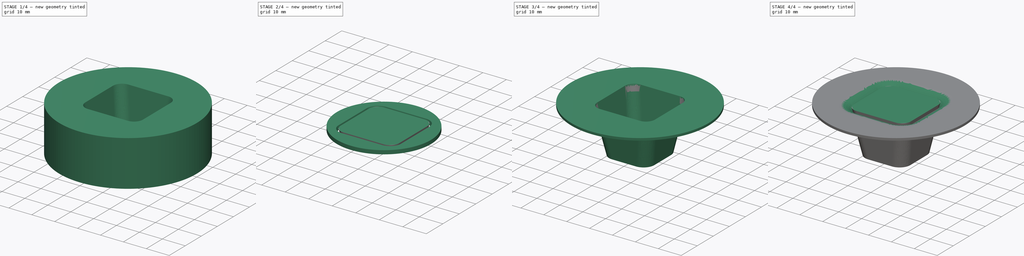
[diagram: build sequence overview — one tinted view per stage of 4, left to right]
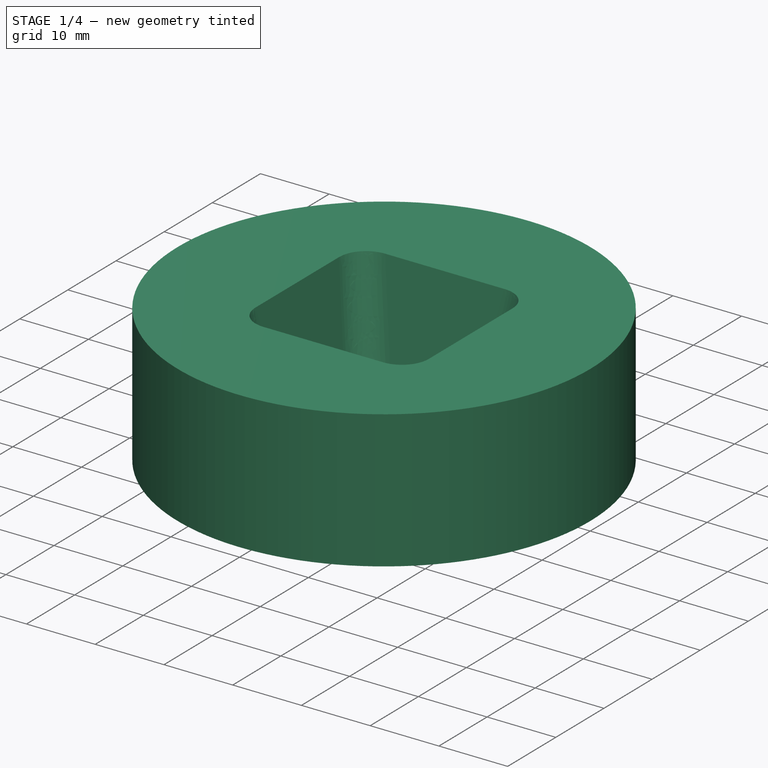
[diagram: stage 1 of 4 — iso view after this stage's code; geometry added in this stage tinted green]
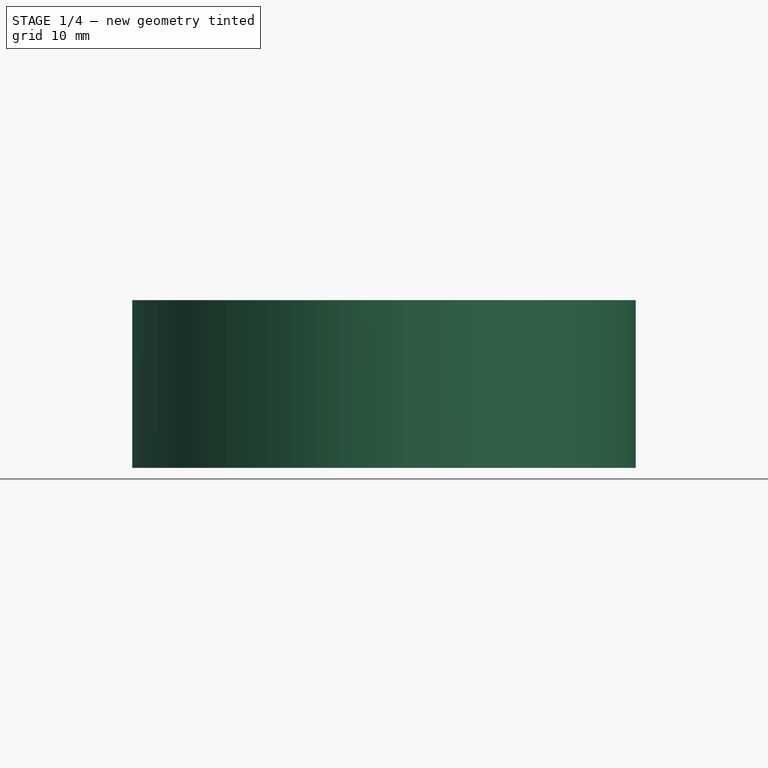
[diagram: stage 1 of 4 — front view after this stage's code; geometry added in this stage tinted green]
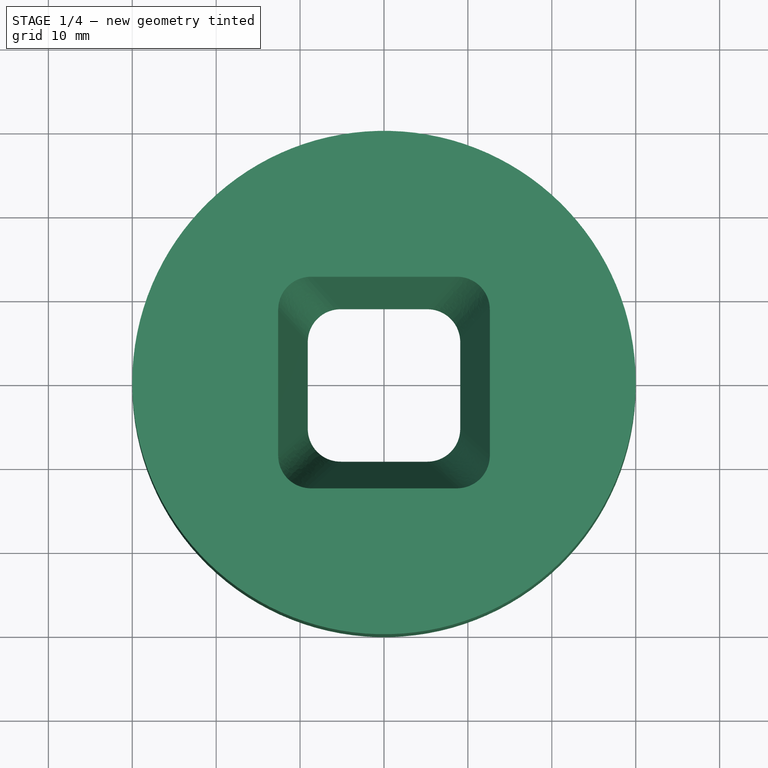
[diagram: stage 1 of 4 — top view after this stage's code; geometry added in this stage tinted green]
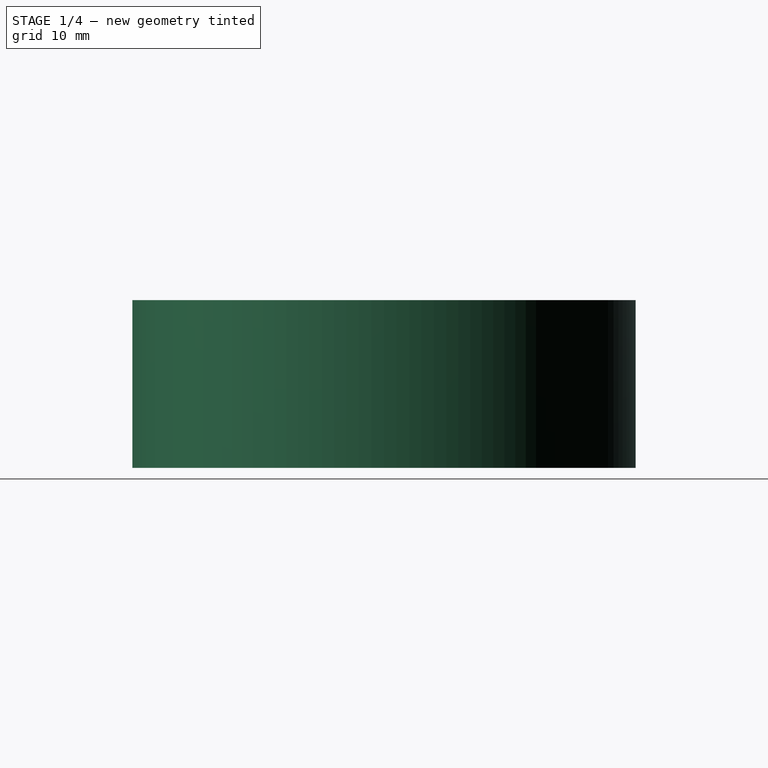
[diagram: stage 1 of 4 — right view after this stage's code; geometry added in this stage tinted green]
FCSTD DOCUMENT  (FreeCAD 0.20R29177 (Git))
Label: rockwool-holder
License: Creative Commons Attribution-ShareAlike
LicenseURL: http://creativecommons.org/licenses/by-sa/4.0/
objects: Sketcher::SketchObject×3, PartDesign::Fillet×3, PartDesign::Pad×2, PartDesign::Body×2, Part::FeaturePython×2, PartDesign::Pocket×1, PartDesign::Thickness×1, Part::Cylinder×1, Part::Cut×1, Part::MultiFuse×1, App::DocumentObjectGroup×1, PartDesign::FeatureBase×1
note: 25 computed .brp shape members not serialized (recipe doc carries the construction recipe); baked Part::Feature solids carry a one-line shape summary decoded from their .brp

FEATURE [Sketcher::SketchObject] Sketch
  FullyConstrained = true
  MapMode = 5
  Support = -> [XY_Plane]
  sketch-geometry (1):
    g0: Circle CenterX=0 CenterY=0 CenterZ=0 NormalX=0 NormalY=0 NormalZ=1 AngleXU=0 Radius=30
  constraints (2):
    c: Coincident(g0,g-1)
    c: Diameter(g0) = 60
FEATURE [PartDesign::Pad] Pad
  Direction = (0,0,1)
  Length = 20
  Length2 = 10
  Profile = -> Sketch
  ReferenceAxis = -> Sketch [N_Axis]
  Reversed = true
  Type = 0
FEATURE [Sketcher::SketchObject] Sketch001
  FullyConstrained = false
  MapMode = 5
  Support = -> [Pad]
  sketch-geometry (5):
    g0: LineSegment StartX=-12.6117 StartY=12.6117 StartZ=0 EndX=-12.6117 EndY=-12.6117 EndZ=0
    g1: LineSegment StartX=-12.6117 StartY=-12.6117 StartZ=0 EndX=12.6117 EndY=-12.6117 EndZ=0
    g2: LineSegment StartX=12.6117 StartY=-12.6117 StartZ=0 EndX=12.6117 EndY=12.6117 EndZ=0
    g3: LineSegment StartX=12.6117 StartY=12.6117 StartZ=0 EndX=-12.6117 EndY=12.6117 EndZ=0
    g4: Circle CenterX=0 CenterY=0 CenterZ=0 NormalX=0 NormalY=0 NormalZ=1 AngleXU=0 Radius=17.8356
  constraints (13):
    c: Coincident(g0,g1)
    c: Coincident(g1,g2)
    c: Coincident(g2,g3)
    c: Coincident(g3,g0)
    c: Equal(g0,g1)
    c: Equal(g0,g2)
    c: Equal(g0,g3)
    c: PointOnObject(g0,g4)
    c: PointOnObject(g1,g4)
    c: PointOnObject(g2,g4)
    c: PointOnObject(g3,g4)
    c: Coincident(g4,g-1)
    c: Horizontal(g3)
FEATURE [PartDesign::Pocket] Pocket
  BaseFeature = -> Pad
  Direction = (0,0,-1)
  Length = 20
  Length2 = 5
  Profile = -> Sketch001
  ReferenceAxis = -> Sketch001 [N_Axis]
  TaperAngle = -10
  Type = 0
FEATURE [PartDesign::Fillet] Fillet
  Base = -> Pocket [Edge13,Edge14,Edge15,Edge12]
  BaseFeature = -> Pocket
  Radius = 4
  SupportTransform = false
  UseAllEdges = false
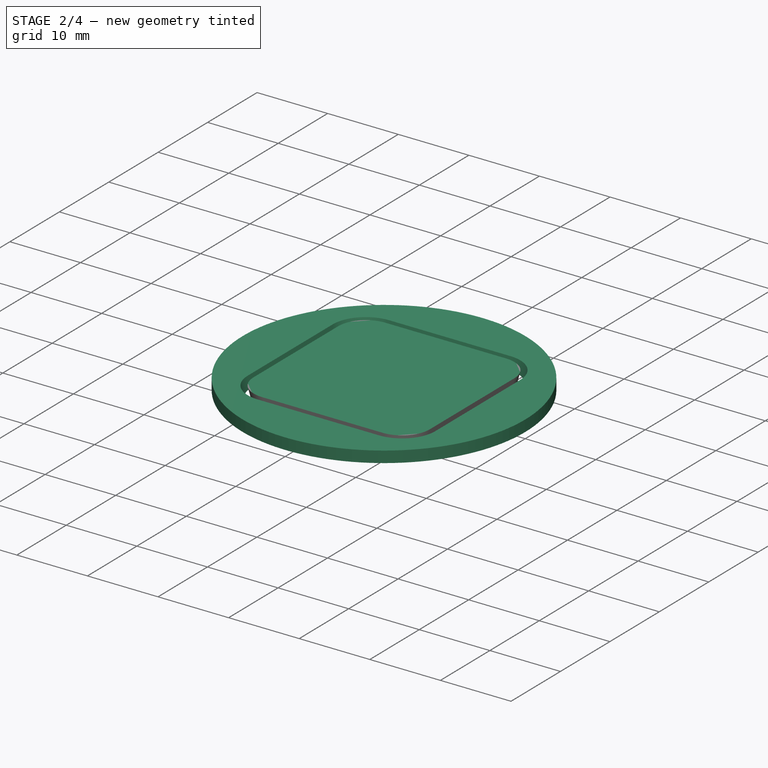
[diagram: stage 2 of 4 — iso view after this stage's code; geometry added in this stage tinted green]
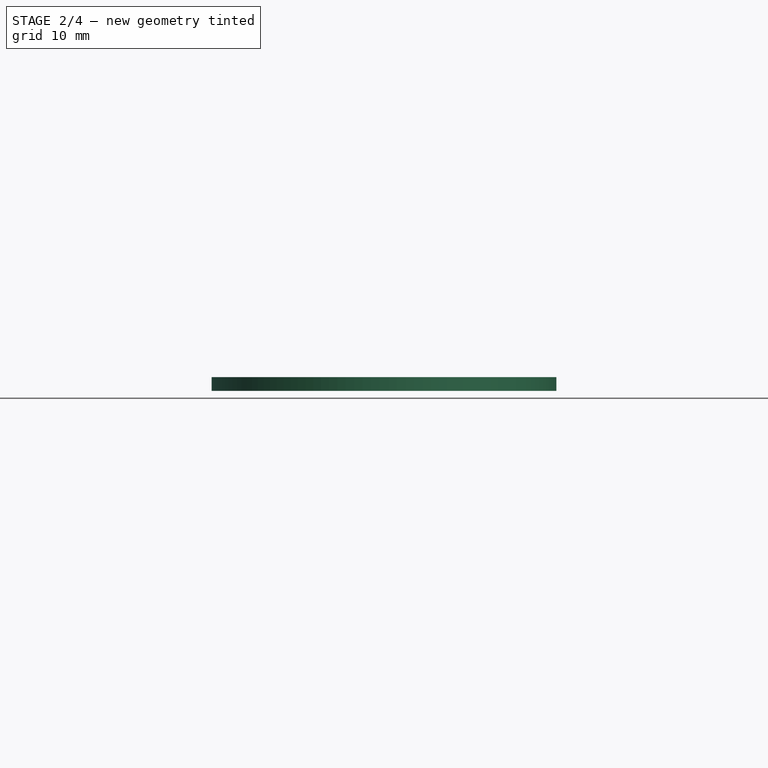
[diagram: stage 2 of 4 — front view after this stage's code; geometry added in this stage tinted green]
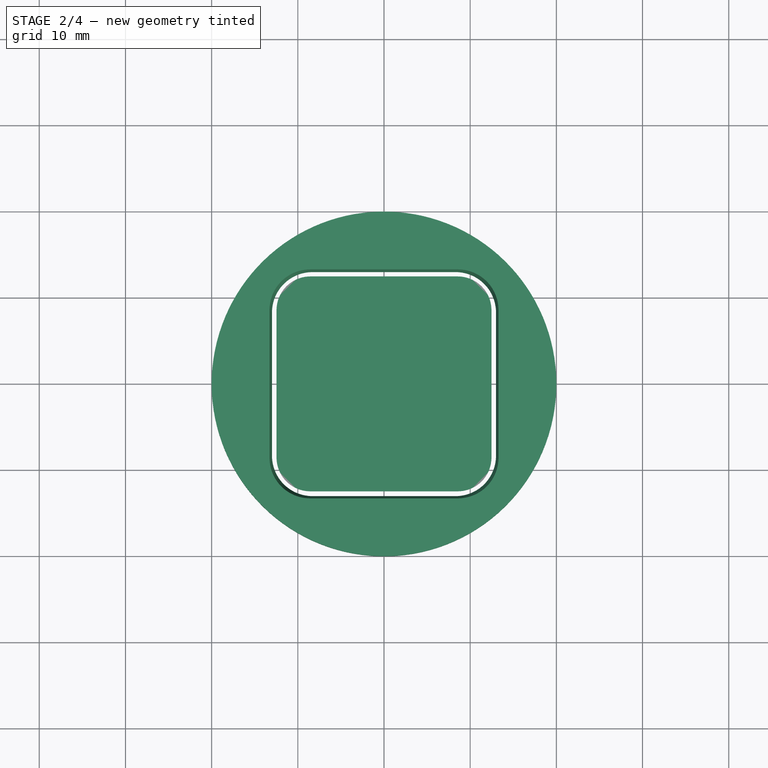
[diagram: stage 2 of 4 — top view after this stage's code; geometry added in this stage tinted green]
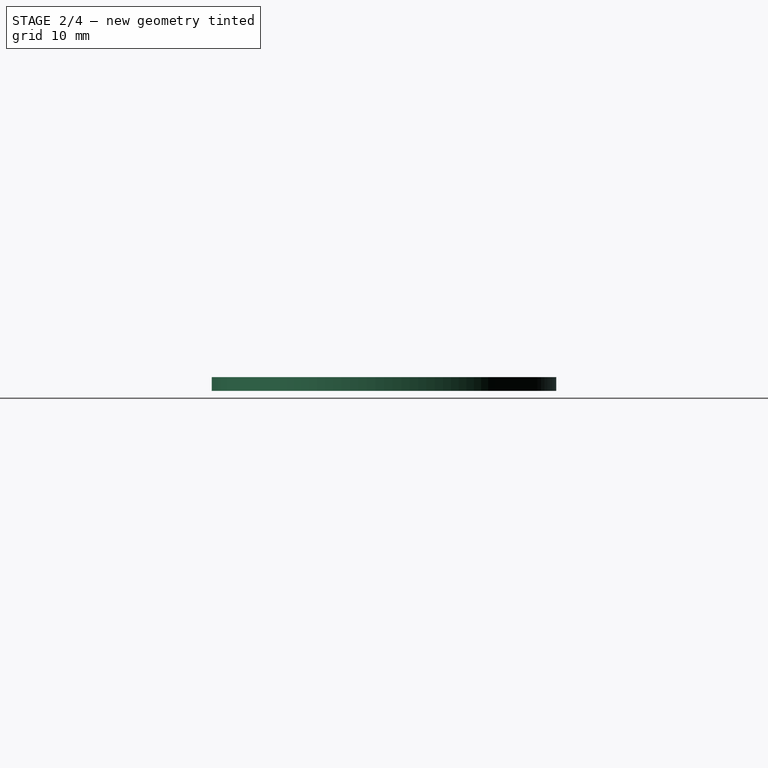
[diagram: stage 2 of 4 — right view after this stage's code; geometry added in this stage tinted green]
FEATURE [PartDesign::Thickness] Thickness
  Base = -> Fillet [Face10,Face11]
  BaseFeature = -> Fillet
  Intersection = false
  Join = 0
  Mode = 0
  Reversed = true
  SupportTransform = false
  Value = 0.8
FEATURE [PartDesign::Body] Body
  Group = -> [Sketch,Pad,Sketch001,Pocket,Fillet,Thickness]
  Origin = -> Origin
  Tip = -> Thickness
FEATURE [Part::Cylinder] Cylinder
  Angle = 360
  AttacherType = Attacher::AttachEngine3D
  FirstAngle = 0
  Height = 1.6
  Placement = pos=(0,0,-2.4) rot=(0,0,1;0rad)
  Radius = 20
  SecondAngle = 0
  expr: .Placement.Base.z = -Height - Thickness.Value
  expr: Radius = 40 / 2
FEATURE [Part::Cut] Cut
  Base = -> Cylinder
  Tool = -> Body
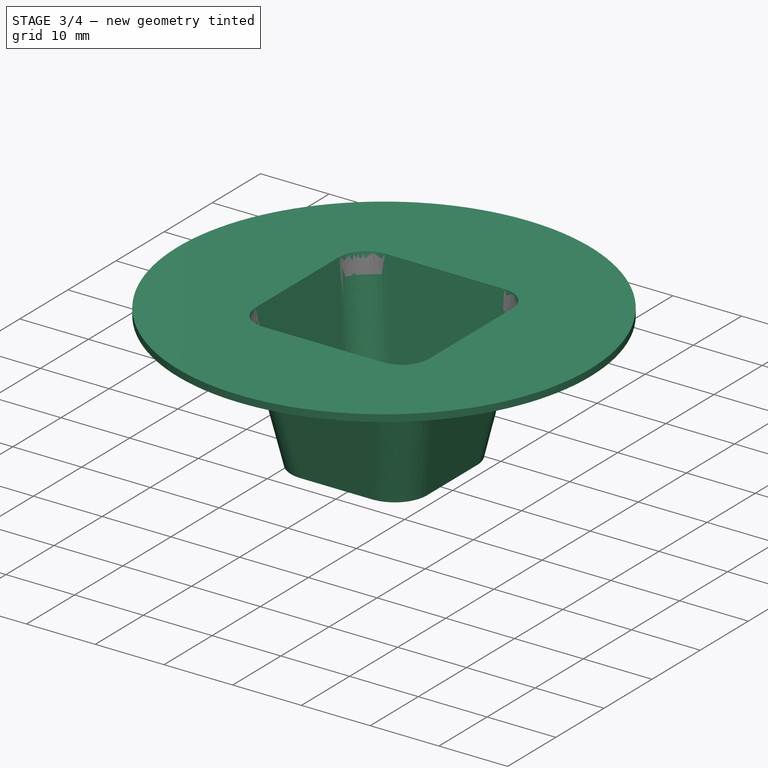
[diagram: stage 3 of 4 — iso view after this stage's code; geometry added in this stage tinted green]
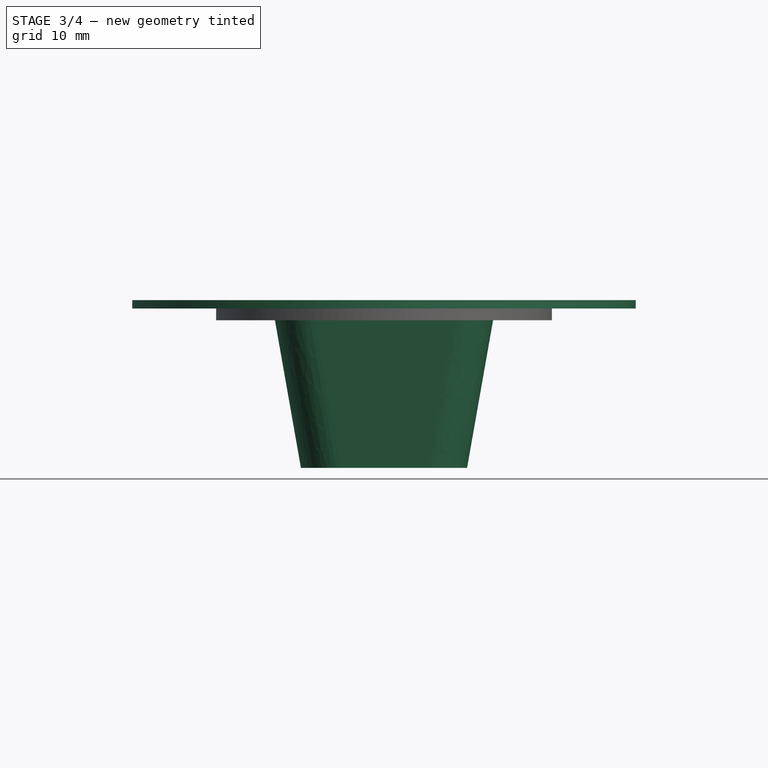
[diagram: stage 3 of 4 — front view after this stage's code; geometry added in this stage tinted green]
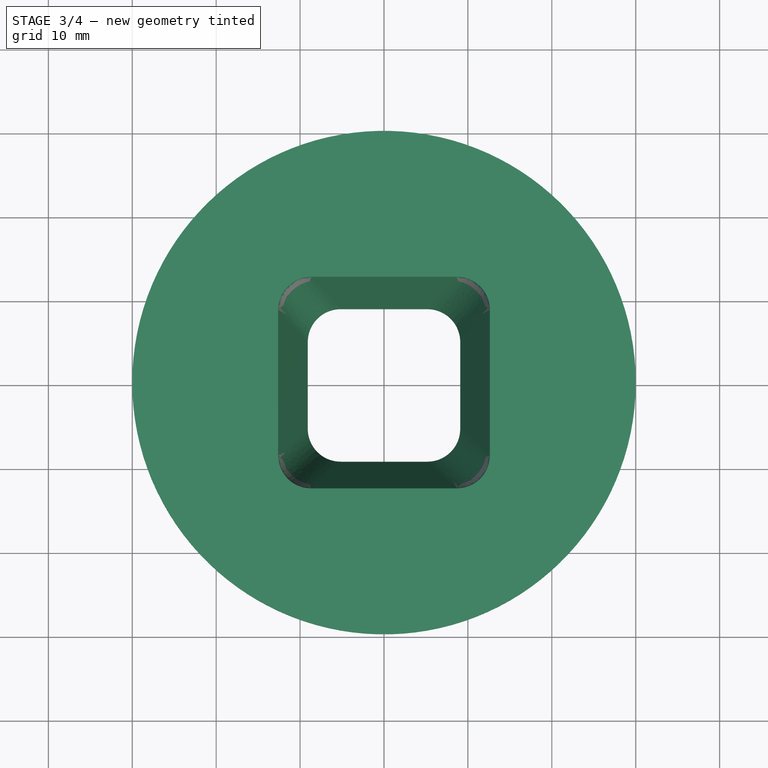
[diagram: stage 3 of 4 — top view after this stage's code; geometry added in this stage tinted green]
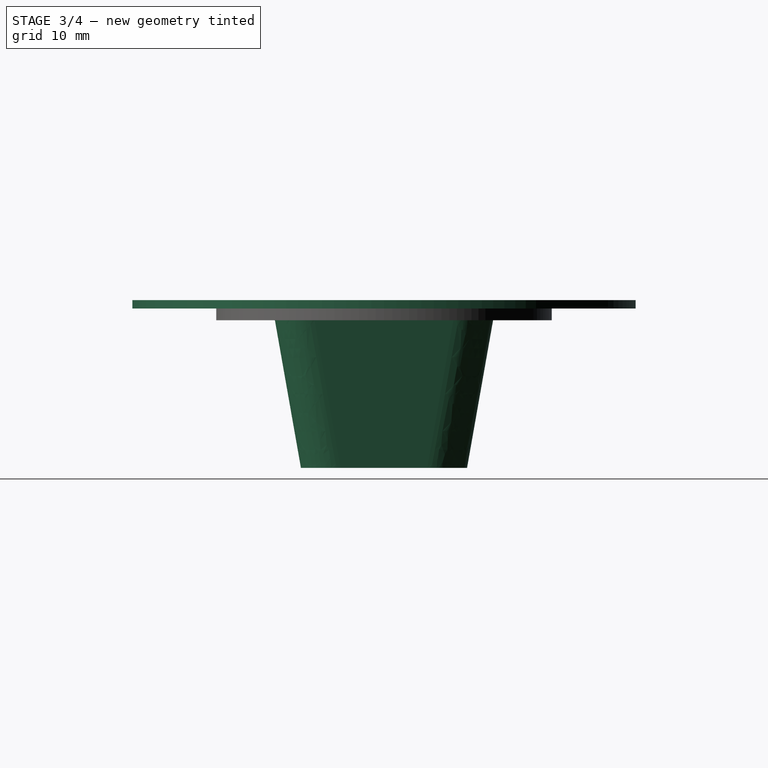
[diagram: stage 3 of 4 — right view after this stage's code; geometry added in this stage tinted green]
FEATURE [Part::FeaturePython] Cut_child0  label="Cut.0"  # WARN: FeaturePython — macro-defined, semantics opaque (R4)
  Base = -> Cut
  FilterType = 1
  Invert = false
  OverrideMaxVal = 0
  WindowFrom = 80
  WindowTo = 100
  items = 0
FEATURE [Part::MultiFuse] Fusion
  Shapes = -> [Body,Cut_child0]
FEATURE [App::DocumentObjectGroup] GrExplode_Cut  label="Exploded Cut"
  Group = -> [Cut_child1,Fusion]
FEATURE [PartDesign::FeatureBase] BaseFeature
  BaseFeature = -> Fusion
FEATURE [PartDesign::Pad] Pad001
  BaseFeature = -> BaseFeature
  Direction = (0,0,-1)
  Length = 0.2
  Length2 = 10
  Profile = -> BaseFeature [Face12]
  Refine = true
  Type = 0
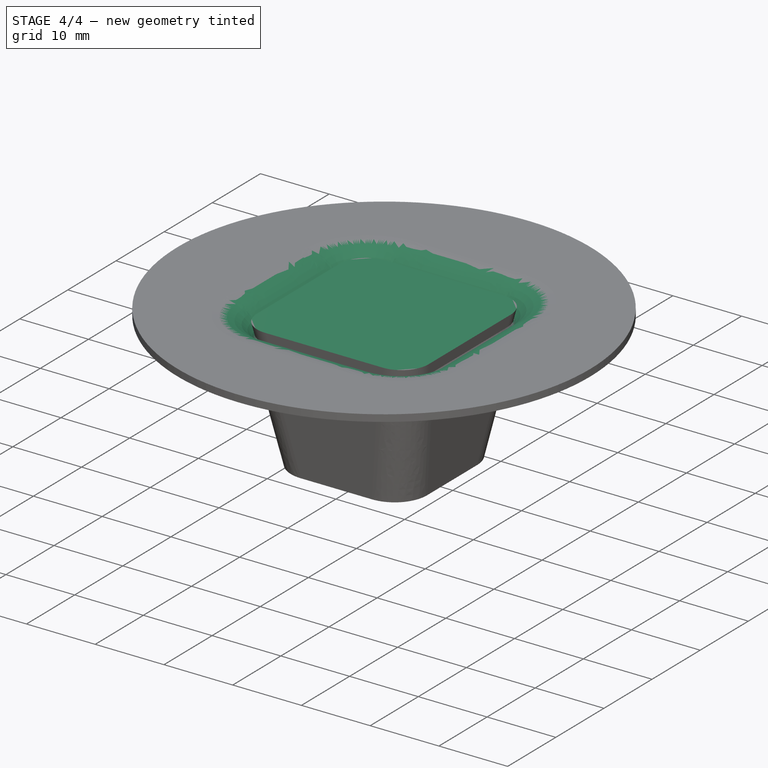
[diagram: stage 4 of 4 — iso view after this stage's code; geometry added in this stage tinted green]
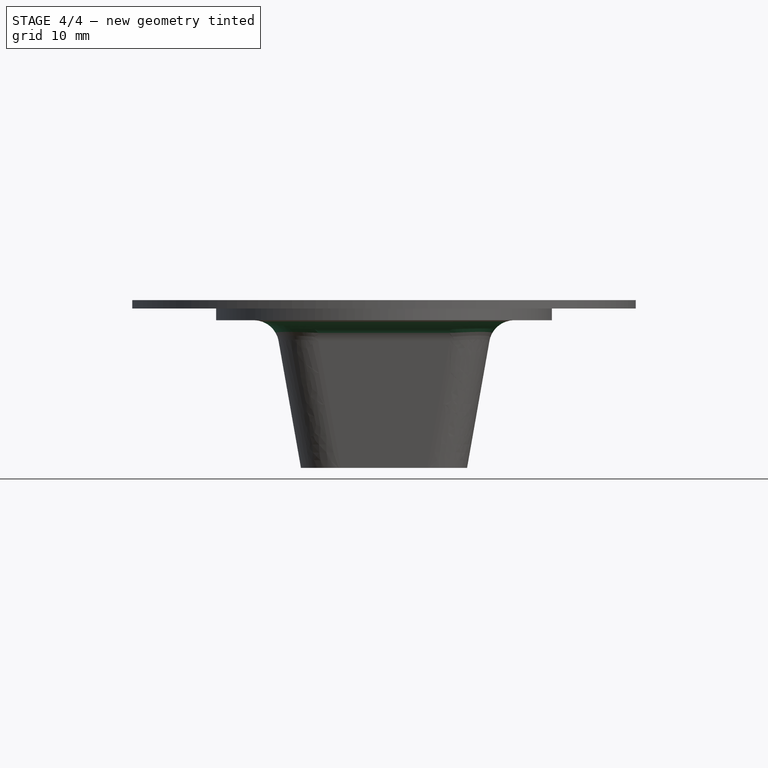
[diagram: stage 4 of 4 — front view after this stage's code; geometry added in this stage tinted green]
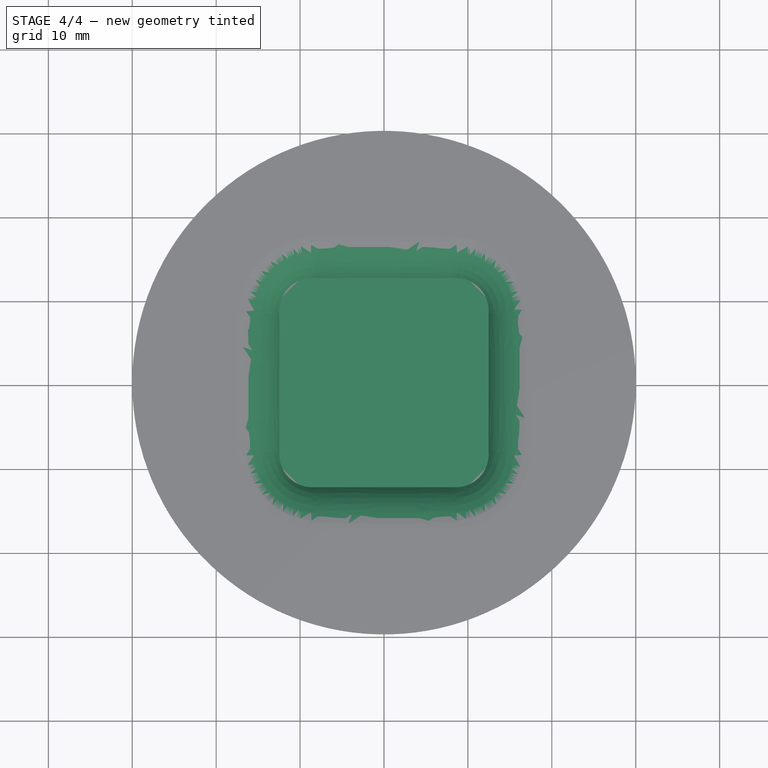
[diagram: stage 4 of 4 — top view after this stage's code; geometry added in this stage tinted green]
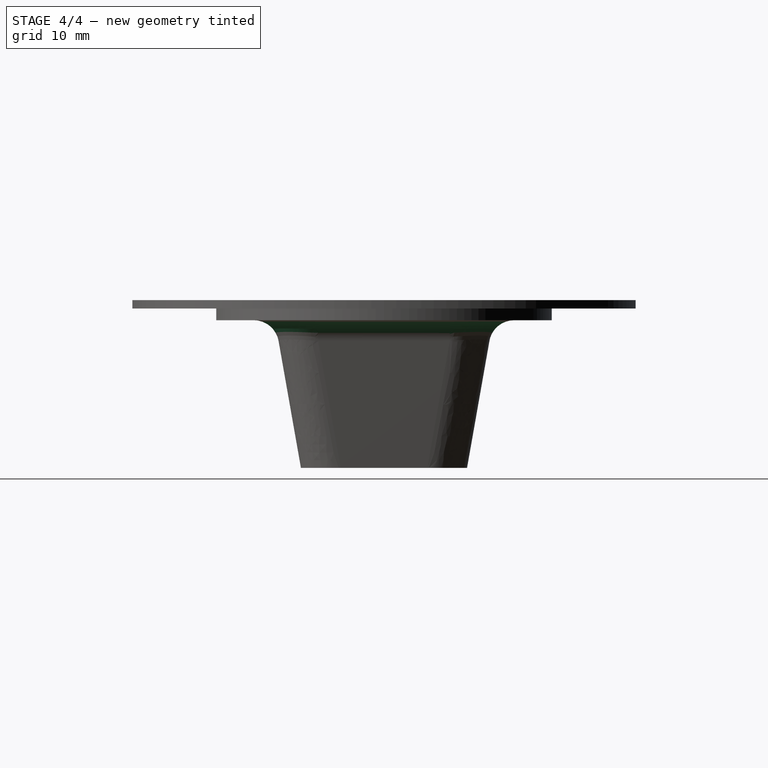
[diagram: stage 4 of 4 — right view after this stage's code; geometry added in this stage tinted green]
FEATURE [Part::FeaturePython] Cut_child1  label="Cut.1"  # WARN: FeaturePython — macro-defined, semantics opaque (R4)
  Base = -> Cut
  FilterType = 1
  Invert = false
  OverrideMaxVal = 0
  WindowFrom = 80
  WindowTo = 100
  items = 1
FEATURE [PartDesign::Fillet] Fillet001
  Base = -> Pad001 [Edge7]
  BaseFeature = -> Pad001
  Radius = 3
  SupportTransform = false
  UseAllEdges = false
FEATURE [Sketcher::SketchObject] Sketch002
  ExternalGeometry = -> [Fillet001]
  FullyConstrained = false
  MapMode = 5
  Placement = pos=(0,0,0) rot=(1,0,0;1.5708rad)
  Support = -> [XZ_Plane001]
  expr: Constraints[6] = 0.8 + 1.5 + 0.1
  expr: Constraints[9] = Fillet001.Radius
  sketch-geometry (8):
    g0: ArcOfCircle CenterX=-15.5181 CenterY=-5.4 CenterZ=0 NormalX=0 NormalY=0 NormalZ=1 AngleXU=0 Radius=3 StartAngle=0.174533 EndAngle=1.5708
    g1: ArcOfCircle CenterX=-17.4249 CenterY=-5.73622 CenterZ=0 NormalX=0 NormalY=0 NormalZ=1 AngleXU=0 Radius=5.73622 StartAngle=0.174533 EndAngle=1.5708
    g2: LineSegment StartX=-32.6606 StartY=-2.4 StartZ=0 EndX=-15.5181 EndY=-2.4 EndZ=0
    g3: LineSegment StartX=-12.5637 StartY=-4.87906 StartZ=0 EndX=-8.72376 EndY=-26.6565 EndZ=0
    g4: LineSegment StartX=-32.6815 StartY=-8e-15 StartZ=0 EndX=-17.4249 EndY=-8e-15 EndZ=0
    g5: LineSegment StartX=-11.7759 StartY=-4.74014 StartZ=0 EndX=-8.77782 EndY=-21.7429 EndZ=0
    g6: LineSegment StartX=-12.5637 StartY=-4.87906 StartZ=0 EndX=-9.89748 EndY=-20 EndZ=0
    g7: LineSegment StartX=-10.6551 StartY=-4.54251 StartZ=0 EndX=-12.5637 EndY=-4.87906 EndZ=0
  constraints (18):
    c: Horizontal(g2)
    c: Tangent(g0,g3) = 1.5708
    c: Tangent(g2,g0) = 1.5708
    c: Tangent(g5,g1) = 1.5708
    c: Tangent(g1,g4) = 1.5708
    c: Horizontal(g4)
    c: Distance(g2,g4) = 2.4
    c: Parallel(g3,g5)
    c: Parallel(g6,g5)
    c: Radius(g0) = 3
    c: Coincident(g6,g-4)
    c: Coincident(g6,g-3)
    c: Coincident(g0,g6)
    c: Distance(g5,g3) = 0.8
    c: Perpendicular(g7,g3)
    c: Coincident(g0,g7)
    c: PointOnObject(g1,g7)
    c: Radius(g1) = 5.73622  'superradius'
FEATURE [PartDesign::Fillet] Fillet002
  Base = -> Fillet001 [Edge58]
  BaseFeature = -> Fillet001
  Radius = 5.73622
  SupportTransform = false
  UseAllEdges = false
  expr: Radius = Sketch002.Constraints.superradius
FEATURE [PartDesign::Body] Body001
  BaseFeature = -> Fusion
  Group = -> [BaseFeature,Pad001,Fillet001,Sketch002,Fillet002]
  Origin = -> Origin001
  Tip = -> Fillet002
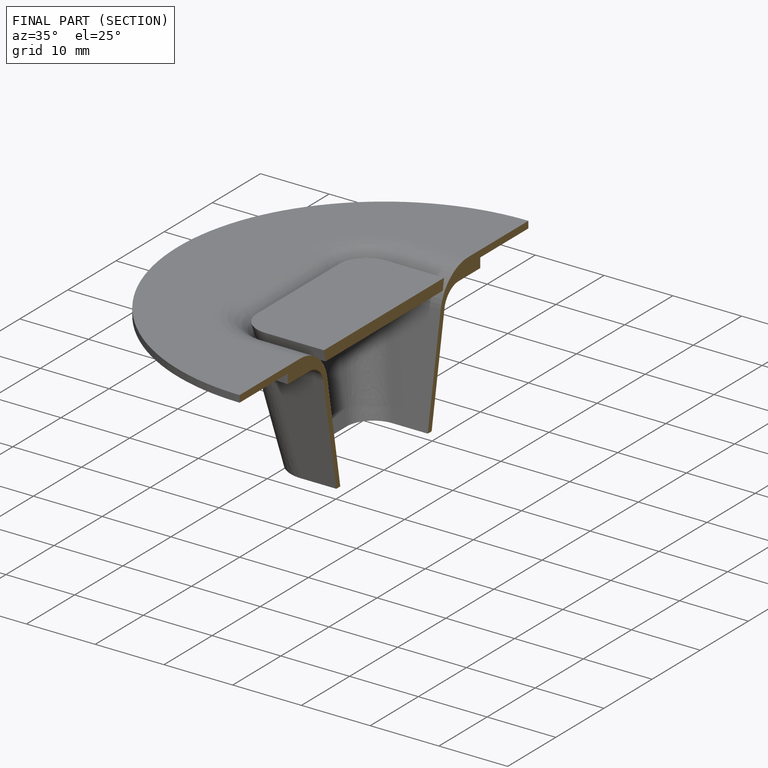
[diagram: finished part — half-section view (interior)]
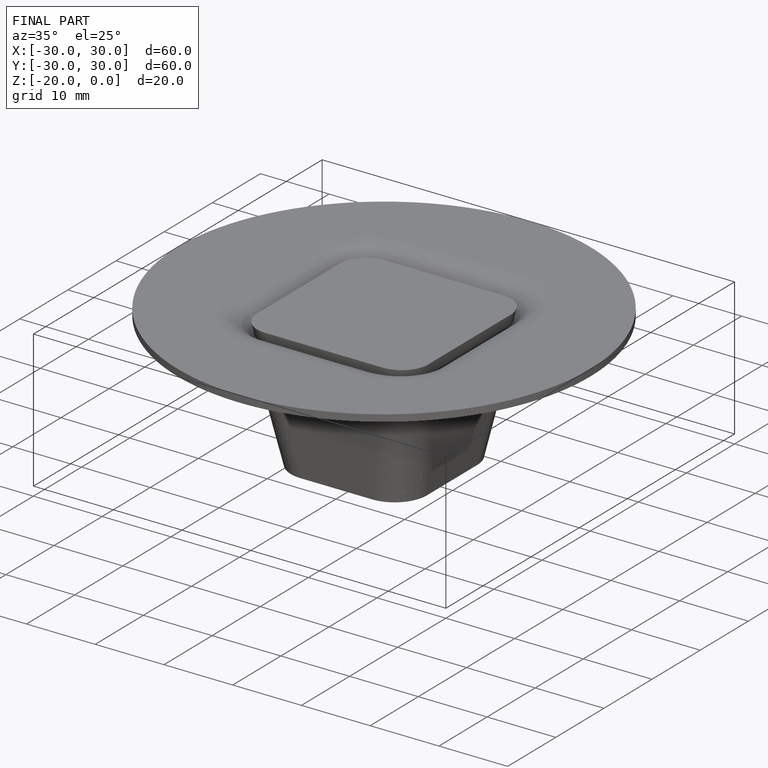
[diagram: finished part — iso view with bounding-box wireframe]
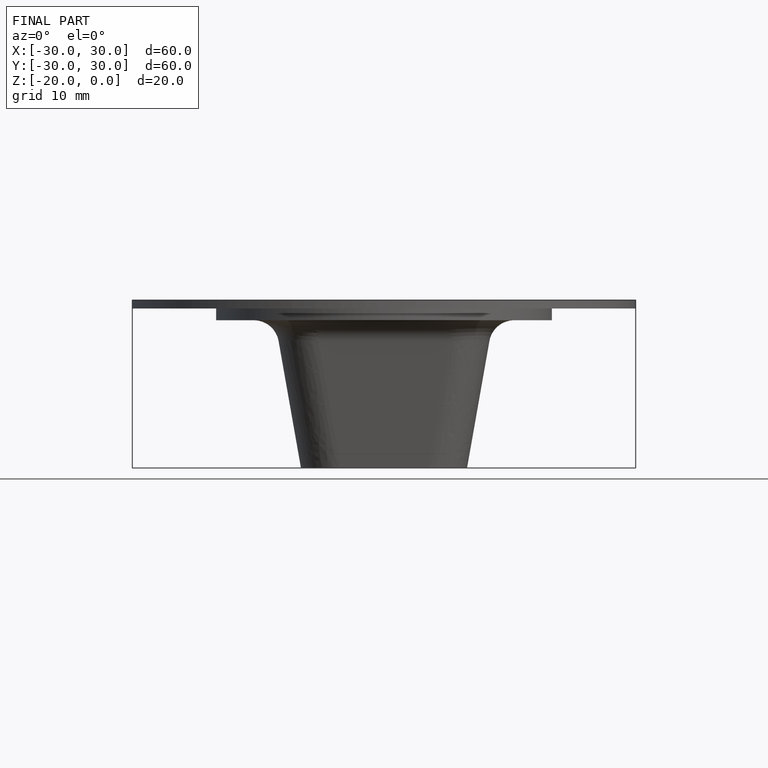
[diagram: finished part — front view with bounding-box wireframe]
